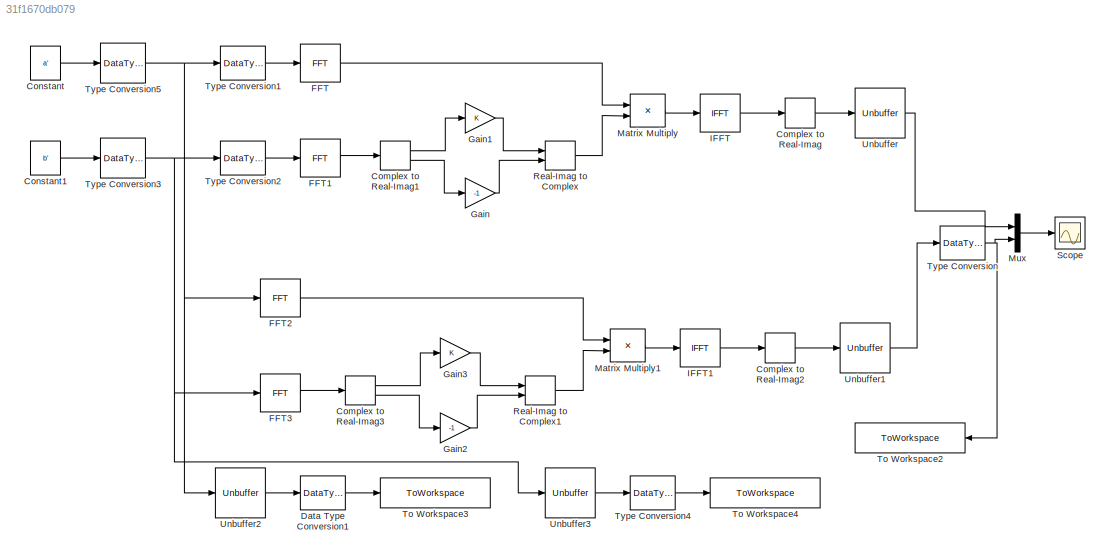
MODEL slx_31f1670db079
KIND model
BLOCK [ComplexToRealImag] Complex to Real-Imag
  Output = Real
  Ports = [1, 1]
BLOCK [ComplexToRealImag] Complex to Real-Imag1
  Ports = [1, 2]
BLOCK [ComplexToRealImag] Complex to Real-Imag2
  Output = Real
  Ports = [1, 1]
BLOCK [ComplexToRealImag] Complex to Real-Imag3
  Ports = [1, 2]
BLOCK [Constant] Constant
  FramePeriod = 128/100e6
  OutDataTypeStr = double
  SampleTime = 1/100e6
  SamplingMode = Frame based
  Value = a'
  VectorParams1D = off
BLOCK [Constant] Constant1
  FramePeriod = 128/100e6
  OutDataTypeStr = double
  SampleTime = 1/100e6
  SamplingMode = Frame based
  Value = b'
  VectorParams1D = off
BLOCK [DataTypeConversion] Data Type Conversion1
  OutDataTypeStr = double
  RndMeth = Floor
  SaturateOnIntegerOverflow = off
BLOCK [Reference] FFT  REF=dspxfrm3/FFT
  BitRevOrder = off
  CompMethod = Table lookup
  FFTImplementation = Radix-2
  FFTLength = 128
  InheritFFTLength = off
  LockScale = off
  Ports = [1, 1]
  RowConvenienceOn = on
  SkipNorm = off
  SourceBlock = dspxfrm3/FFT
  SourceType = FFT
  TableOpt = NEW
  TableOptActive = Speed
  accumDataTypeStr = Inherit: Inherit via internal rule
  accumFracLength = 30
  accumLastDataTypeStr = Inherit: Inherit via internal rule
  accumMode = Inherit via internal rule
  accumWordLength = 32
  additionalParams = off
  allowOverrides = on
  firstCoeffDataTypeStr = Inherit: Same word length as input
  firstCoeffFracLength = 15
  firstCoeffLastDataTypeStr = Inherit: Same word length as input
  firstCoeffMode = Same word length as input
  firstCoeffWordLength = 16
  outputDataTypeStr = Inherit: Inherit via internal rule
  outputFracLength = 15
  outputLastDataTypeStr = Inherit: Inherit via internal rule
  outputMax = []
  outputMin = []
  outputMode = Inherit via internal rule
  outputWordLength = 16
  overflowMode = off
  prodOutputDataTypeStr = Inherit: Inherit via internal rule
  prodOutputFracLength = 30
  prodOutputLastDataTypeStr = Inherit: Inherit via internal rule
  prodOutputMode = Inherit via internal rule
  prodOutputWordLength = 32
  roundingMode = Floor
BLOCK [Reference] FFT1  REF=dspxfrm3/FFT
  BitRevOrder = off
  CompMethod = Table lookup
  FFTImplementation = Radix-2
  FFTLength = 128
  InheritFFTLength = off
  LockScale = off
  Ports = [1, 1]
  RowConvenienceOn = on
  SkipNorm = off
  SourceBlock = dspxfrm3/FFT
  SourceType = FFT
  TableOpt = NEW
  TableOptActive = Speed
  accumDataTypeStr = Inherit: Inherit via internal rule
  accumFracLength = 30
  accumLastDataTypeStr = Inherit: Inherit via internal rule
  accumMode = Inherit via internal rule
  accumWordLength = 32
  additionalParams = off
  allowOverrides = on
  firstCoeffDataTypeStr = Inherit: Same word length as input
  firstCoeffFracLength = 15
  firstCoeffLastDataTypeStr = Inherit: Same word length as input
  firstCoeffMode = Same word length as input
  firstCoeffWordLength = 16
  outputDataTypeStr = Inherit: Inherit via internal rule
  outputFracLength = 15
  outputLastDataTypeStr = Inherit: Inherit via internal rule
  outputMax = []
  outputMin = []
  outputMode = Inherit via internal rule
  outputWordLength = 16
  overflowMode = off
  prodOutputDataTypeStr = Inherit: Inherit via internal rule
  prodOutputFracLength = 30
  prodOutputLastDataTypeStr = Inherit: Inherit via internal rule
  prodOutputMode = Inherit via internal rule
  prodOutputWordLength = 32
  roundingMode = Floor
BLOCK [Reference] FFT2  REF=dspxfrm3/FFT
  BitRevOrder = off
  CompMethod = Table lookup
  FFTImplementation = Radix-2
  FFTLength = 128
  InheritFFTLength = off
  LockScale = off
  Ports = [1, 1]
  RowConvenienceOn = on
  SkipNorm = off
  SourceBlock = dspxfrm3/FFT
  SourceType = FFT
  TableOpt = NEW
  TableOptActive = Speed
  accumDataTypeStr = fixdt(1,16,7)
  accumFracLength = 7
  accumLastDataTypeStr = fixdt(1,16,7)
  accumMode = Binary point scaling
  accumWordLength = 16
  additionalParams = off
  allowOverrides = on
  firstCoeffDataTypeStr = fixdt(1,8)
  firstCoeffFracLength = 15
  firstCoeffLastDataTypeStr = fixdt(1,8)
  firstCoeffMode = Specify word length
  firstCoeffWordLength = 8
  outputDataTypeStr = fixdt(1,16,7)
  outputFracLength = 7
  outputLastDataTypeStr = fixdt(1,16,7)
  outputMax = []
  outputMin = []
  outputMode = Binary point scaling
  outputWordLength = 16
  overflowMode = off
  prodOutputDataTypeStr = fixdt(1,11,7)
  prodOutputFracLength = 7
  prodOutputLastDataTypeStr = fixdt(1,11,7)
  prodOutputMode = Binary point scaling
  prodOutputWordLength = 11
  roundingMode = Floor
BLOCK [Reference] FFT3  REF=dspxfrm3/FFT
  BitRevOrder = off
  CompMethod = Table lookup
  FFTImplementation = Radix-2
  FFTLength = 128
  InheritFFTLength = off
  LockScale = off
  Ports = [1, 1]
  RowConvenienceOn = on
  SkipNorm = off
  SourceBlock = dspxfrm3/FFT
  SourceType = FFT
  TableOpt = NEW
  TableOptActive = Speed
  accumDataTypeStr = fixdt(1,16,7)
  accumFracLength = 7
  accumLastDataTypeStr = fixdt(1,16,7)
  accumMode = Binary point scaling
  accumWordLength = 16
  additionalParams = off
  allowOverrides = on
  firstCoeffDataTypeStr = fixdt(1,8)
  firstCoeffFracLength = 15
  firstCoeffLastDataTypeStr = fixdt(1,8)
  firstCoeffMode = Specify word length
  firstCoeffWordLength = 8
  outputDataTypeStr = fixdt(1,16,7)
  outputFracLength = 7
  outputLastDataTypeStr = fixdt(1,16,7)
  outputMax = []
  outputMin = []
  outputMode = Binary point scaling
  outputWordLength = 16
  overflowMode = off
  prodOutputDataTypeStr = fixdt(1,11,7)
  prodOutputFracLength = 7
  prodOutputLastDataTypeStr = fixdt(1,11,7)
  prodOutputMode = Binary point scaling
  prodOutputWordLength = 11
  roundingMode = Floor
BLOCK [Gain] Gain
  Gain = -1
  OutDataTypeStr = Inherit: Inherit via internal rule
  ParamDataTypeStr = Inherit: Inherit via internal rule
  SaturateOnIntegerOverflow = off
BLOCK [Gain] Gain1
  OutDataTypeStr = Inherit: Inherit via internal rule
  ParamDataTypeStr = Inherit: Inherit via internal rule
  SaturateOnIntegerOverflow = off
BLOCK [Gain] Gain2
  Gain = -1
  OutDataTypeStr = fixdt(1,16,7)
  ParamDataTypeStr = Inherit: Inherit via internal rule
  SaturateOnIntegerOverflow = off
BLOCK [Gain] Gain3
  OutDataTypeStr = fixdt(1,16,7)
  ParamDataTypeStr = Inherit: Inherit via internal rule
  SaturateOnIntegerOverflow = off
BLOCK [Reference] IFFT  REF=dspxfrm3/IFFT
  BitRevOrder = off
  CompMethod = Table lookup
  FFTImplementation = Radix-2
  FFTLength = 128
  InheritFFTLength = off
  LockScale = off
  Ports = [1, 1]
  RowConvenienceOn = on
  SkipNorm = off
  SourceBlock = dspxfrm3/IFFT
  SourceType = IFFT
  TableOpt = NEW
  TableOptActive = Speed
  accumDataTypeStr = Inherit: Inherit via internal rule
  accumFracLength = 30
  accumLastDataTypeStr = Inherit: Inherit via internal rule
  accumMode = Inherit via internal rule
  accumWordLength = 32
  additionalParams = off
  allowOverrides = on
  cs_in = off
  firstCoeffDataTypeStr = Inherit: Same word length as input
  firstCoeffFracLength = 15
  firstCoeffLastDataTypeStr = Inherit: Same word length as input
  firstCoeffMode = Same word length as input
  firstCoeffWordLength = 16
  mode = Complex
  outSamplingMode = Frame based
  outputDataTypeStr = Inherit: Inherit via internal rule
  outputFracLength = 15
  outputLastDataTypeStr = Inherit: Inherit via internal rule
  outputMax = []
  outputMin = []
  outputMode = Inherit via internal rule
  outputWordLength = 16
  overflowMode = off
  prodOutputDataTypeStr = Inherit: Inherit via internal rule
  prodOutputFracLength = 30
  prodOutputLastDataTypeStr = Inherit: Inherit via internal rule
  prodOutputMode = Inherit via internal rule
  prodOutputWordLength = 32
  roundingMode = Floor
BLOCK [Reference] IFFT1  REF=dspxfrm3/IFFT
  BitRevOrder = off
  CompMethod = Table lookup
  FFTImplementation = Radix-2
  FFTLength = 128
  InheritFFTLength = off
  LockScale = off
  Ports = [1, 1]
  RowConvenienceOn = on
  SkipNorm = off
  SourceBlock = dspxfrm3/IFFT
  SourceType = IFFT
  TableOpt = NEW
  TableOptActive = Speed
  accumDataTypeStr = fixdt(1,33,7)
  accumFracLength = 7
  accumLastDataTypeStr = fixdt(1,33,7)
  accumMode = Binary point scaling
  accumWordLength = 33
  additionalParams = off
  allowOverrides = on
  cs_in = off
  firstCoeffDataTypeStr = fixdt(1,16)
  firstCoeffFracLength = 15
  firstCoeffLastDataTypeStr = fixdt(1,16)
  firstCoeffMode = Specify word length
  firstCoeffWordLength = 16
  mode = Complex
  outSamplingMode = Frame based
  outputDataTypeStr = fixdt(1,33,7)
  outputFracLength = 7
  outputLastDataTypeStr = fixdt(1,33,7)
  outputMax = []
  outputMin = []
  outputMode = Binary point scaling
  outputWordLength = 33
  overflowMode = off
  prodOutputDataTypeStr = fixdt(1,25,7)
  prodOutputFracLength = 7
  prodOutputLastDataTypeStr = fixdt(1,25,7)
  prodOutputMode = Binary point scaling
  prodOutputWordLength = 25
  roundingMode = Floor
BLOCK [Product] Matrix Multiply
  InputSameDT = off
  OutDataTypeStr = Inherit: Inherit via internal rule
  Ports = [2, 1]
  RndMeth = Floor
  SaturateOnIntegerOverflow = off
BLOCK [Product] Matrix Multiply1
  InputSameDT = off
  OutDataTypeStr = fixdt(1,25,7)
  Ports = [2, 1]
  RndMeth = Floor
  SaturateOnIntegerOverflow = off
BLOCK [Mux] Mux
  DisplayOption = bar
  Inputs = 2
  Ports = [2, 1]
BLOCK [RealImagToComplex] Real-Imag to Complex
  Ports = [2, 1]
BLOCK [RealImagToComplex] Real-Imag to Complex1
  Ports = [2, 1]
BLOCK [Scope] Scope
  DataFormat = StructureWithTime
  Floating = off
  LimitDataPoints = off
  NumInputPorts = 1
  Ports = [1]
  SampleTime = 0
  ShowLegends = off
  YMax = 0.85
  YMin = 0.1
BLOCK [ToWorkspace] To Workspace2
  MaxDataPoints = inf
  Ports = [1]
  SampleTime = -1
  SaveFormat = Timeseries
  VariableName = Correlation_Output1
BLOCK [ToWorkspace] To Workspace3
  MaxDataPoints = inf
  Ports = [1]
  SampleTime = -1
  SaveFormat = Timeseries
  VariableName = Input_A
BLOCK [ToWorkspace] To Workspace4
  MaxDataPoints = inf
  Ports = [1]
  SampleTime = -1
  SaveFormat = Timeseries
  VariableName = Input_B
BLOCK [DataTypeConversion] Type Conversion
  OutDataTypeStr = double
  RndMeth = Floor
  SaturateOnIntegerOverflow = off
BLOCK [DataTypeConversion] Type Conversion1
  OutDataTypeStr = double
  RndMeth = Floor
  SaturateOnIntegerOverflow = off
BLOCK [DataTypeConversion] Type Conversion2
  OutDataTypeStr = double
  RndMeth = Floor
  SaturateOnIntegerOverflow = off
BLOCK [DataTypeConversion] Type Conversion3
  OutDataTypeStr = fixdt(1,8,7)
  RndMeth = Floor
  SaturateOnIntegerOverflow = off
BLOCK [DataTypeConversion] Type Conversion4
  OutDataTypeStr = double
  RndMeth = Floor
  SaturateOnIntegerOverflow = off
BLOCK [DataTypeConversion] Type Conversion5
  OutDataTypeStr = fixdt(1,8,7)
  RndMeth = Floor
  SaturateOnIntegerOverflow = off
BLOCK [Unbuffer] Unbuffer
  Ports = [1, 1]
BLOCK [Unbuffer] Unbuffer1
  Ports = [1, 1]
BLOCK [Unbuffer] Unbuffer2
  Ports = [1, 1]
BLOCK [Unbuffer] Unbuffer3
  Ports = [1, 1]
LINE Complex to Real-Imag1:1 -> Gain1:1
LINE Complex to Real-Imag1:2 -> Gain:1
LINE Complex to Real-Imag2:1 -> Unbuffer1:1
LINE Complex to Real-Imag3:1 -> Gain3:1
LINE Complex to Real-Imag3:2 -> Gain2:1
LINE Complex to Real-Imag:1 -> Unbuffer:1
LINE Constant1:1 -> Type Conversion3:1
LINE Constant:1 -> Type Conversion5:1
LINE Data Type Conversion1:1 -> To Workspace3:1
LINE FFT1:1 -> Complex to Real-Imag1:1
LINE FFT2:1 -> Matrix Multiply1:1
LINE FFT3:1 -> Complex to Real-Imag3:1
LINE FFT:1 -> Matrix Multiply:1
LINE Gain1:1 -> Real-Imag to Complex:1
LINE Gain2:1 -> Real-Imag to Complex1:2
LINE Gain3:1 -> Real-Imag to Complex1:1
LINE Gain:1 -> Real-Imag to Complex:2
LINE IFFT1:1 -> Complex to Real-Imag2:1
LINE IFFT:1 -> Complex to Real-Imag:1
LINE Matrix Multiply1:1 -> IFFT1:1
LINE Matrix Multiply:1 -> IFFT:1
LINE Mux:1 -> Scope:1
LINE Real-Imag to Complex1:1 -> Matrix Multiply1:2
LINE Real-Imag to Complex:1 -> Matrix Multiply:2
LINE Type Conversion1:1 -> FFT:1
LINE Type Conversion2:1 -> FFT1:1
NET Type Conversion3:1 -> FFT3:1, Type Conversion2:1, Unbuffer3:1
LINE Type Conversion4:1 -> To Workspace4:1
NET Type Conversion5:1 -> FFT2:1, Type Conversion1:1, Unbuffer2:1
NET Type Conversion:1 -> Mux:2, To Workspace2:1
LINE Unbuffer1:1 -> Type Conversion:1
LINE Unbuffer2:1 -> Data Type Conversion1:1
LINE Unbuffer3:1 -> Type Conversion4:1
LINE Unbuffer:1 -> Mux:1
note: NET lines group one-source signal fan-out (src -> all destinations, sorted); 1:1 wires keep LINE
